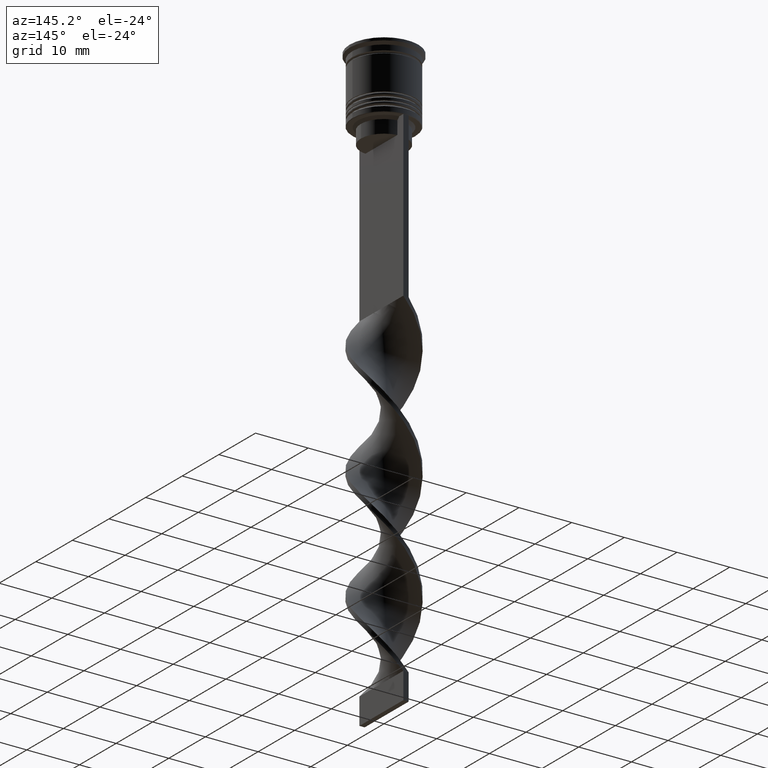
[diagram: clean part render]
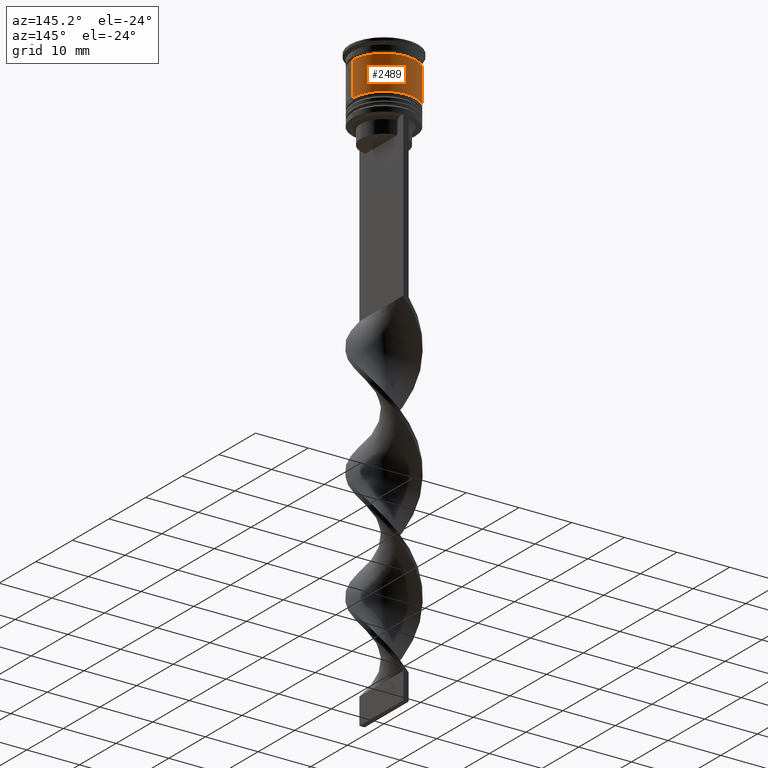
[diagram: same view with one face highlighted and labeled with its STEP entity id]
A machine part, auxiliary view. The second image highlights one B-rep face of the part: STEP entity #2489.
In plain terms, the highlighted cylindrical surface (partial cylindrical patch) has radius 6 mm, axis along (-0, -0, 1).
Its self-contained STEP definition (entity closure, byte-faithful):
#11 = DIRECTION ( 'NONE',  ( 1.000000000000000000, 0.000000000000000000, 0.000000000000000000 ) ) ;
#183 = VECTOR ( 'NONE', #3491, 1000.000000000000000 ) ;
#284 = VERTEX_POINT ( 'NONE', #2721 ) ;
#298 = VERTEX_POINT ( 'NONE', #1060 ) ;
#307 = CYLINDRICAL_SURFACE ( 'NONE', #1398, 6.000000000000000000 ) ;
#325 = AXIS2_PLACEMENT_3D ( 'NONE', #2227, #1089, #11 ) ;
#398 = DIRECTION ( 'NONE',  ( 1.000000000000000000, 0.000000000000000000, 0.000000000000000000 ) ) ;
#467 = CARTESIAN_POINT ( 'NONE',  ( 5.999999999999999112, 0.000000000000000000, -2.500000000000000444 ) ) ;
#506 = CARTESIAN_POINT ( 'NONE',  ( -6.000000000000001776, 7.347880794884121708E-16, -9.000000000000001776 ) ) ;
#509 = DIRECTION ( 'NONE',  ( -0.000000000000000000, -0.000000000000000000, 1.000000000000000000 ) ) ;
#1009 = CARTESIAN_POINT ( 'NONE',  ( -6.000000000000000000, 7.347880794884119736E-16, 0.000000000000000000 ) ) ;
#1050 = CARTESIAN_POINT ( 'NONE',  ( 6.000000000000000000, 0.000000000000000000, 0.000000000000000000 ) ) ;
#1060 = CARTESIAN_POINT ( 'NONE',  ( 6.000000000000000888, 0.000000000000000000, -9.000000000000001776 ) ) ;
#1063 = LINE ( 'NONE', #1009, #183 ) ;
#1089 = DIRECTION ( 'NONE',  ( -0.000000000000000000, -0.000000000000000000, 1.000000000000000000 ) ) ;
#1093 = ORIENTED_EDGE ( 'NONE', *, *, #1662, .F. ) ;
#1259 = EDGE_CURVE ( 'NONE', #298, #1430, #2007, .T. ) ;
#1398 = AXIS2_PLACEMENT_3D ( 'NONE', #3111, #509, #1873 ) ;
#1421 = VERTEX_POINT ( 'NONE', #467 ) ;
#1430 = VERTEX_POINT ( 'NONE', #506 ) ;
#1538 = EDGE_CURVE ( 'NONE', #298, #1421, #2125, .T. ) ;
#1608 = FACE_OUTER_BOUND ( 'NONE', #2849, .T. ) ;
#1660 = CIRCLE ( 'NONE', #325, 5.999999999999999112 ) ;
#1662 = EDGE_CURVE ( 'NONE', #1421, #284, #1660, .T. ) ;
#1769 = ORIENTED_EDGE ( 'NONE', *, *, #1538, .F. ) ;
#1873 = DIRECTION ( 'NONE',  ( 1.000000000000000000, 0.000000000000000000, 0.000000000000000000 ) ) ;
#2007 = CIRCLE ( 'NONE', #3057, 6.000000000000000888 ) ;
#2125 = LINE ( 'NONE', #1050, #2473 ) ;
#2160 = DIRECTION ( 'NONE',  ( -0.000000000000000000, -0.000000000000000000, 1.000000000000000000 ) ) ;
#2227 = CARTESIAN_POINT ( 'NONE',  ( 0.000000000000000000, 0.000000000000000000, -2.500000000000000444 ) ) ;
#2236 = ORIENTED_EDGE ( 'NONE', *, *, #3001, .T. ) ;
#2473 = VECTOR ( 'NONE', #2160, 1000.000000000000000 ) ;
#2489 = ADVANCED_FACE ( 'NONE', ( #1608 ), #307, .T. ) ;
#2721 = CARTESIAN_POINT ( 'NONE',  ( -5.999999999999999112, 7.347880794884118750E-16, -2.500000000000000444 ) ) ;
#2843 = DIRECTION ( 'NONE',  ( -0.000000000000000000, -0.000000000000000000, 1.000000000000000000 ) ) ;
#2849 = EDGE_LOOP ( 'NONE', ( #2882, #2236, #1093, #1769 ) ) ;
#2882 = ORIENTED_EDGE ( 'NONE', *, *, #1259, .T. ) ;
#3001 = EDGE_CURVE ( 'NONE', #1430, #284, #1063, .T. ) ;
#3057 = AXIS2_PLACEMENT_3D ( 'NONE', #3160, #2843, #398 ) ;
#3111 = CARTESIAN_POINT ( 'NONE',  ( 0.000000000000000000, 0.000000000000000000, 0.000000000000000000 ) ) ;
#3160 = CARTESIAN_POINT ( 'NONE',  ( 0.000000000000000000, 0.000000000000000000, -9.000000000000001776 ) ) ;
#3491 = DIRECTION ( 'NONE',  ( -0.000000000000000000, -0.000000000000000000, 1.000000000000000000 ) ) ;